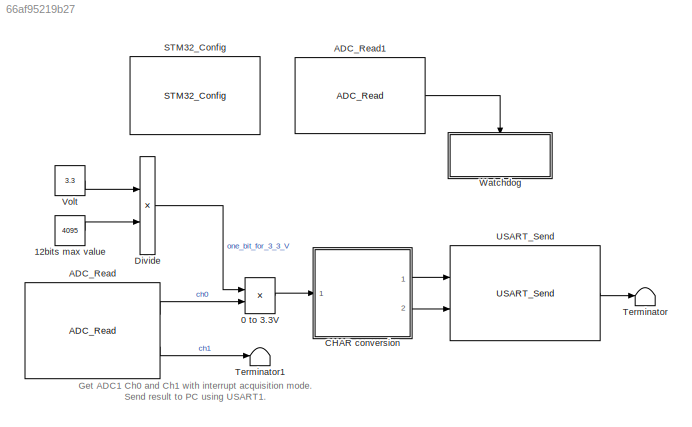
MODEL slx_66af95219b27
KIND model
CONFIG AbsTol = auto
CONFIG EnableMultiTasking = on
CONFIG FixedStep = 0.016
CONFIG MaxStep = auto
CONFIG MinStep = auto
CONFIG RelTol = 1e-3
CONFIG SampleTimeConstraint = Unconstrained
CONFIG Solver = FixedStepDiscrete
CONFIG SolverName = FixedStepDiscrete
CONFIG StartTime = 0.0
CONFIG StopTime = 10.0
BLOCK [Product] 0 to 3.3V
  InputSameDT = off
  OutDataTypeStr = single
  Ports = [2, 1]
  SaturateOnIntegerOverflow = off
BLOCK [Constant] 12bits max value
  OutDataTypeStr = uint16
  Value = 4095
BLOCK [Reference] ADC_Read  REF=ADC_Lib/ADC_Read
  Ports = [0, 2]
  SourceBlock = ADC_Lib/ADC_Read
  SourceProductName = Target Support Package - STM32 Adapter
  SourceType = ADC_Read
BLOCK [Reference] ADC_Read1  REF=ADC_Lib/ADC_Read
  Ports = [0, 1]
  SourceBlock = ADC_Lib/ADC_Read
  SourceProductName = Target Support Package - STM32 Adapter
  SourceType = ADC_Read
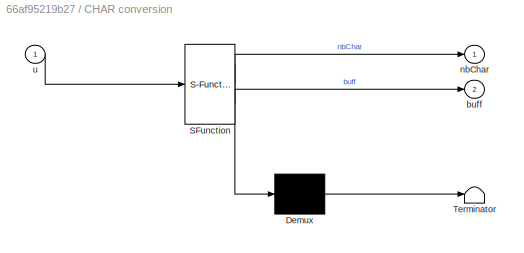
BLOCK [SubSystem] CHAR conversion
  ErrorFcn = Stateflow.Translate.translate
  PermitHierarchicalResolution = ExplicitOnly
  Ports = [1, 2]
  RequestExecContextInheritance = off
  SFBlockType = MATLAB Function
  TreatAsAtomicUnit = on
BLOCK [Demux] CHAR conversion/ Demux 
  Outputs = 1
  Ports = [1, 1]
BLOCK [S-Function] CHAR conversion/ SFunction 
  EnableBusSupport = on
  FunctionName = sf_sfun
  PortCounts = [1 3]
  Ports = [1, 3]
  SFcnIsStateOwnerBlock = off
  SFunctionDeploymentMode = off
  Tag = Stateflow S-Function F429_ADC1_IT 2
BLOCK [Terminator] CHAR conversion/ Terminator 
BLOCK [Outport] CHAR conversion/buff
  IconDisplay = Port number
  Port = 2
BLOCK [Outport] CHAR conversion/nbChar
  IconDisplay = Port number
BLOCK [Inport] CHAR conversion/u
  IconDisplay = Port number
BLOCK [Product] Divide
  InputSameDT = off
  Inputs = */
  OutDataTypeStr = single
  Ports = [2, 1]
  RndMeth = Floor
  SaturateOnIntegerOverflow = off
BLOCK [Reference] STM32_Config  REF=STM32_Config_Lib/STM32_Config
  Ports = []
  Priority = 0
  SourceBlock = STM32_Config_Lib/STM32_Config
  SourceProductName = Target Support Package - STM32 Adapter
  SourceType = STM32_Config
BLOCK [Terminator] Terminator
BLOCK [Terminator] Terminator1
BLOCK [Reference] USART_Send  REF=USART_Lib/USART_Send
  Ports = [2, 1]
  SourceBlock = USART_Lib/USART_Send
  SourceProductName = Target Support Package - STM32 Adapter
  SourceType = USART_Send
BLOCK [Constant] Volt
  OutDataTypeStr = single
  Value = 3.3
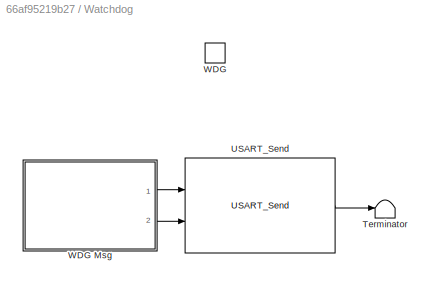
BLOCK [SubSystem] Watchdog
  Ports = [0, 0, 0, 1]
  RequestExecContextInheritance = off
  TreatAsAtomicUnit = on
BLOCK [Terminator] Watchdog/Terminator
BLOCK [Reference] Watchdog/USART_Send  REF=USART_Lib/USART_Send
  Ports = [2, 1]
  SourceBlock = USART_Lib/USART_Send
  SourceProductName = Target Support Package - STM32 Adapter
  SourceType = USART_Send
BLOCK [TriggerPort] Watchdog/WDG
  Ports = []
  StatesWhenEnabling = held
  TriggerType = function-call
  VariantControl = Variant
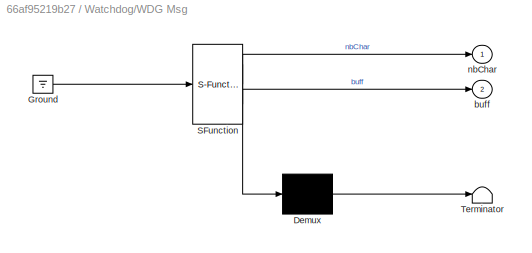
BLOCK [SubSystem] Watchdog/WDG Msg
  ErrorFcn = Stateflow.Translate.translate
  PermitHierarchicalResolution = ExplicitOnly
  Ports = [0, 2]
  RequestExecContextInheritance = off
  SFBlockType = MATLAB Function
  TreatAsAtomicUnit = on
BLOCK [Demux] Watchdog/WDG Msg/ Demux 
  Outputs = 1
  Ports = [1, 1]
BLOCK [Ground] Watchdog/WDG Msg/ Ground 
BLOCK [S-Function] Watchdog/WDG Msg/ SFunction 
  EnableBusSupport = on
  FunctionName = sf_sfun
  PortCounts = [1 3]
  Ports = [1, 3]
  SFcnIsStateOwnerBlock = off
  SFunctionDeploymentMode = off
  Tag = Stateflow S-Function F429_ADC1_IT 1
BLOCK [Terminator] Watchdog/WDG Msg/ Terminator 
BLOCK [Outport] Watchdog/WDG Msg/buff
  IconDisplay = Port number
  Port = 2
BLOCK [Outport] Watchdog/WDG Msg/nbChar
  IconDisplay = Port number
ANNOTATION (root): Get ADC1 Ch0 and Ch1 with interrupt acquisition mode. Send result to PC using USART1.
LINE 0 to 3.3V:1 -> CHAR conversion:1
LINE 12bits max value:1 -> Divide:2
LINE ADC_Read1:1 -> Watchdog:trigger
LINE ADC_Read:1 -> 0 to 3.3V:2
LINE ADC_Read:2 -> Terminator1:1
LINE CHAR conversion:1 -> USART_Send:1
LINE CHAR conversion:2 -> USART_Send:2
LINE Divide:1 -> 0 to 3.3V:1
LINE USART_Send:1 -> Terminator:1
LINE Volt:1 -> Divide:1
LINE Watchdog/USART_Send:1 -> Watchdog/Terminator:1
LINE Watchdog/WDG Msg:1 -> Watchdog/USART_Send:1
LINE Watchdog/WDG Msg:2 -> Watchdog/USART_Send:2
CHART Watchdog/WDG Msg states=1 transitions=1
  STATE_LABEL 'eML_blk_kernel()'
  STATE_LABEL "SCRIPT:\nfunction [nbChar, buff] = WDG_Msg()\nif coder.target('Sfun')\n    % Executing in MATLAB, Buff is null\n    buff = uint32(0);\n    nbChar = uint16(0);\nelse\n    % Executing in the generated code.\n    y = char(['Watchdog Int', 13, 10, 0]);\n    buff = coder.ceval('getBuffPtr',coder.rref(y));\n    nbChar = uint16(size(y,2));\nend\nend"
CHART CHAR conversion states=1 transitions=1
  STATE_LABEL 'eML_blk_kernel()'
  STATE_LABEL "SCRIPT:\nfunction [nbChar, buff] = convert(u)\nif coder.target('Sfun')\n    % Executing in MATLAB, Buff is null\n    buff = uint32(0);\n    nbChar = uint16(0);\nelse\n    coder.cinclude('stdio.h');\n    coder.cinclude('main.h');\n    coder.cinclude('getBuffPtr.h');\n\n    % Executing in the generated code.\n    string = char(zeros(1,20));\n    stringSize = uint16(size(string,2));\n    stringFormat = char(['%08x...<+262ch>"
